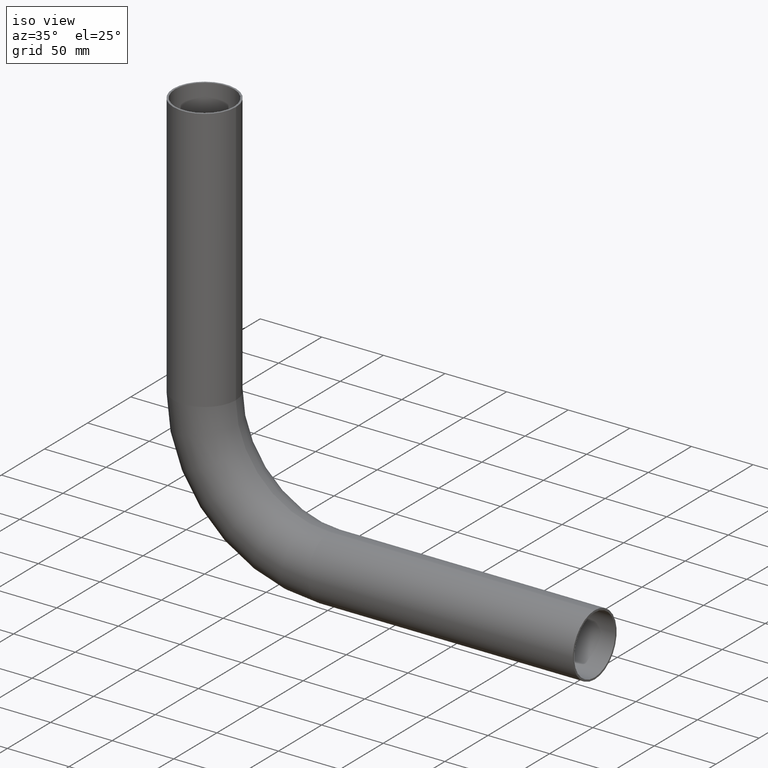
[diagram: clean part render]
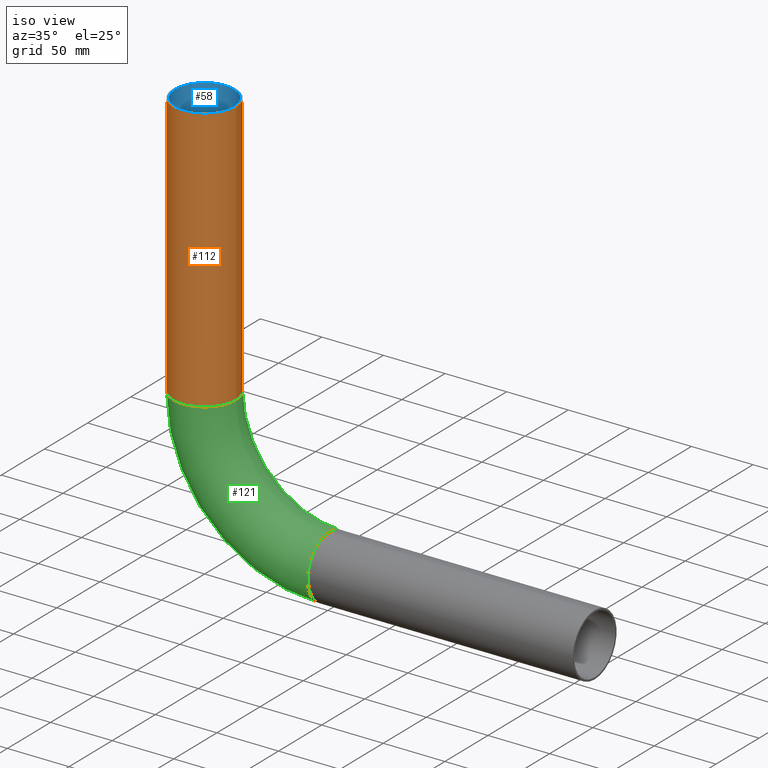
[diagram: same view with three faces highlighted in distinct colors, each labeled with its STEP entity id]
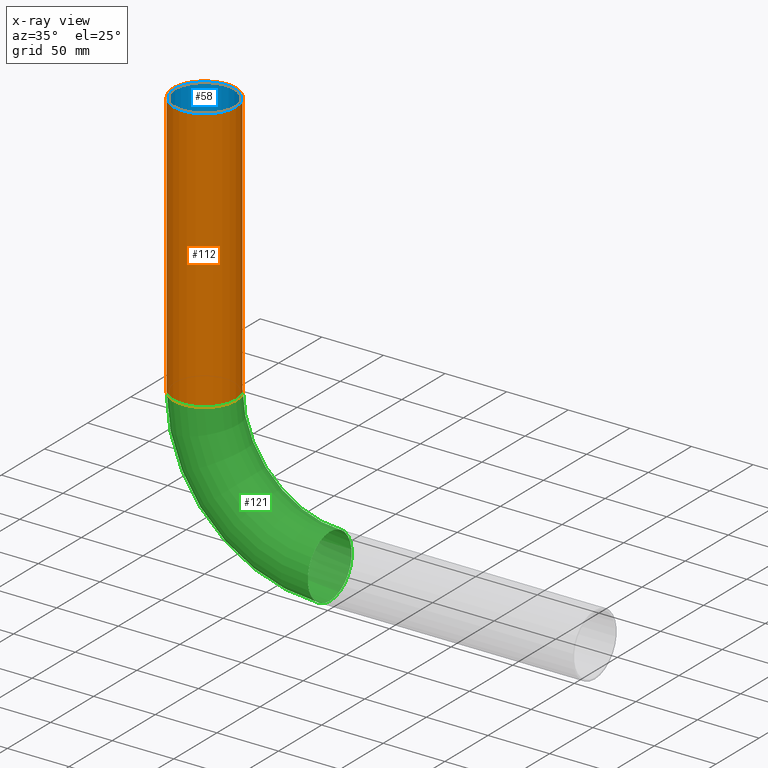
[diagram: x-ray of the same camera — body ghosted, the three highlighted faces saturated]
A machine part, iso view with three faces highlighted in distinct colors.
The next image is the same camera in x-ray (body ghosted, the three faces saturated) — at least one of them is partly hidden behind the body in this view.
Their STEP definitions:

[orange] entity #112 — the highlighted cylindrical surface (bore or boss wall) has radius 25.4 mm, axis along (0, 0, -1).
#112=ADVANCED_FACE('',(#184,#186),#188,.T.);
#184=FACE_OUTER_BOUND('',#185,.T.);
#185=EDGE_LOOP('',(#214));
#186=FACE_OUTER_BOUND('',#187,.T.);
#187=EDGE_LOOP('',(#215));
#188=CYLINDRICAL_SURFACE('',#189,25.4);
#189=AXIS2_PLACEMENT_3D('',#190,#191,#192);
#190=CARTESIAN_POINT('',(0.,0.,0.));
#191=DIRECTION('',(1.32193997350716E-016,0.,-1.));
#192=DIRECTION('',(1.,0.,1.32193997350716E-016));
#214=ORIENTED_EDGE('',*,*,#223,.T.);
#215=ORIENTED_EDGE('',*,*,#225,.F.);
#223=EDGE_CURVE('',#236,#236,#237,.T.);
#225=EDGE_CURVE('',#240,#240,#241,.T.);
#236=VERTEX_POINT('',#267);
#237=CIRCLE('',#268,25.4);
#240=VERTEX_POINT('',#277);
#241=CIRCLE('',#278,25.4);
#267=CARTESIAN_POINT('',(25.4,0.,3.35772753270819E-015));
#268=AXIS2_PLACEMENT_3D('',#269,#270,#271);
#269=CARTESIAN_POINT('',(0.,0.,0.));
#270=DIRECTION('',(0.,0.,-1.));
#271=DIRECTION('',(1.,0.,0.));
#277=CARTESIAN_POINT('',(25.4,-3.11060286983428E-015,-215.));
#278=AXIS2_PLACEMENT_3D('',#279,#280,#281);
#279=CARTESIAN_POINT('',(2.8421709430404E-014,0.,-215.));
#280=DIRECTION('',(1.32193997350716E-016,0.,-1.));
#281=DIRECTION('',(1.,0.,1.32193997350716E-016));

[blue] entity #58 — the highlighted cylindrical surface (bore or boss wall) has radius 23.9 mm, axis along (0, 0, -1).
#58=ADVANCED_FACE('',(#130,#132),#134,.F.);
#130=FACE_OUTER_BOUND('',#131,.T.);
#131=EDGE_LOOP('',(#202));
#132=FACE_OUTER_BOUND('',#133,.T.);
#133=EDGE_LOOP('',(#203));
#134=CYLINDRICAL_SURFACE('',#135,23.9);
#135=AXIS2_PLACEMENT_3D('',#136,#137,#138);
#136=CARTESIAN_POINT('',(0.,0.,0.));
#137=DIRECTION('',(1.32193997350716E-016,0.,-1.));
#138=DIRECTION('',(1.,0.,1.32193997350716E-016));
#202=ORIENTED_EDGE('',*,*,#218,.F.);
#203=ORIENTED_EDGE('',*,*,#219,.T.);
#218=EDGE_CURVE('',#226,#226,#227,.T.);
#219=EDGE_CURVE('',#228,#228,#229,.T.);
#226=VERTEX_POINT('',#242);
#227=CIRCLE('',#243,23.9);
#228=VERTEX_POINT('',#247);
#229=CIRCLE('',#248,23.9);
#242=CARTESIAN_POINT('',(23.9,0.,3.15943653668212E-015));
#243=AXIS2_PLACEMENT_3D('',#244,#245,#246);
#244=CARTESIAN_POINT('',(0.,0.,0.));
#245=DIRECTION('',(0.,0.,-1.));
#246=DIRECTION('',(1.,0.,0.));
#247=CARTESIAN_POINT('',(23.9,5.85381169992435E-015,-215.));
#248=AXIS2_PLACEMENT_3D('',#249,#250,#251);
#249=CARTESIAN_POINT('',(2.8421709430404E-014,0.,-215.));
#250=DIRECTION('',(-0.,-0.,-1.));
#251=DIRECTION('',(1.,-1.22464679914735E-016,0.));

[green] entity #121 — the highlighted toroidal blend (fillet) surface has major radius 101.6 mm and minor (blend) radius 25.4 mm.
#121=ADVANCED_FACE('',(#193,#195),#197,.T.);
#193=FACE_OUTER_BOUND('',#194,.T.);
#194=EDGE_LOOP('',(#216));
#195=FACE_OUTER_BOUND('',#196,.T.);
#196=EDGE_LOOP('',(#217));
#197=TOROIDAL_SURFACE('',#198,101.6,25.4);
#198=AXIS2_PLACEMENT_3D('',#199,#200,#201);
#199=CARTESIAN_POINT('',(101.6,0.,-215.));
#200=DIRECTION('',(0.,-1.,-0.));
#201=DIRECTION('',(-1.,0.,0.));
#216=ORIENTED_EDGE('',*,*,#224,.F.);
#217=ORIENTED_EDGE('',*,*,#225,.T.);
#224=EDGE_CURVE('',#238,#238,#239,.T.);
#225=EDGE_CURVE('',#240,#240,#241,.T.);
#238=VERTEX_POINT('',#272);
#239=CIRCLE('',#273,25.4);
#240=VERTEX_POINT('',#277);
#241=CIRCLE('',#278,25.4);
#272=CARTESIAN_POINT('',(101.6,0.,-291.2));
#273=AXIS2_PLACEMENT_3D('',#274,#275,#276);
#274=CARTESIAN_POINT('',(101.6,0.,-316.6));
#275=DIRECTION('',(1.,0.,-6.12323399573677E-017));
#276=DIRECTION('',(6.12323399573677E-017,-1.22464679914735E-016,1.));
#277=CARTESIAN_POINT('',(25.4,-3.11060286983428E-015,-215.));
#278=AXIS2_PLACEMENT_3D('',#279,#280,#281);
#279=CARTESIAN_POINT('',(2.8421709430404E-014,0.,-215.));
#280=DIRECTION('',(1.32193997350716E-016,0.,-1.));
#281=DIRECTION('',(1.,0.,1.32193997350716E-016));